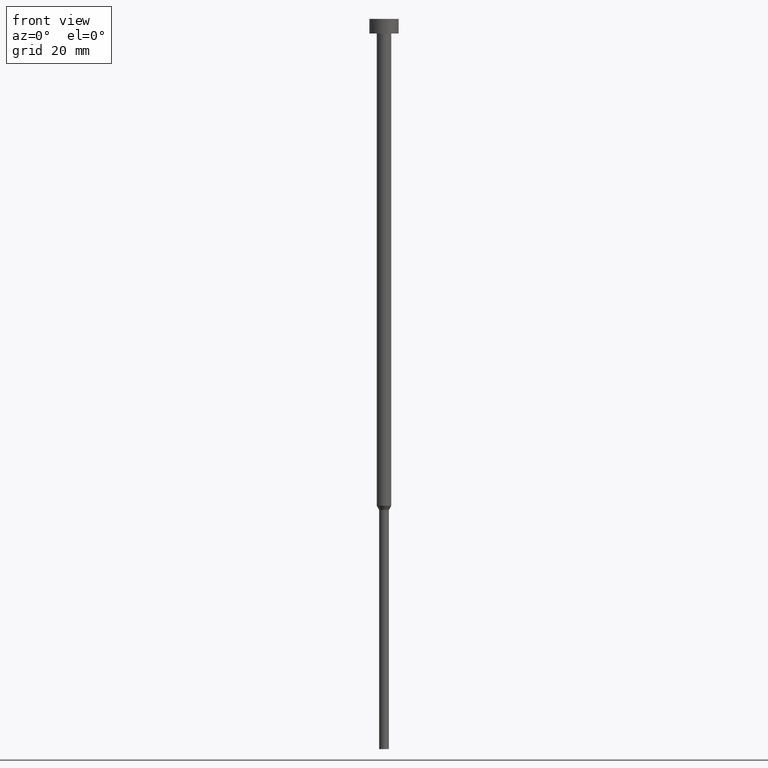
[diagram: clean part render]
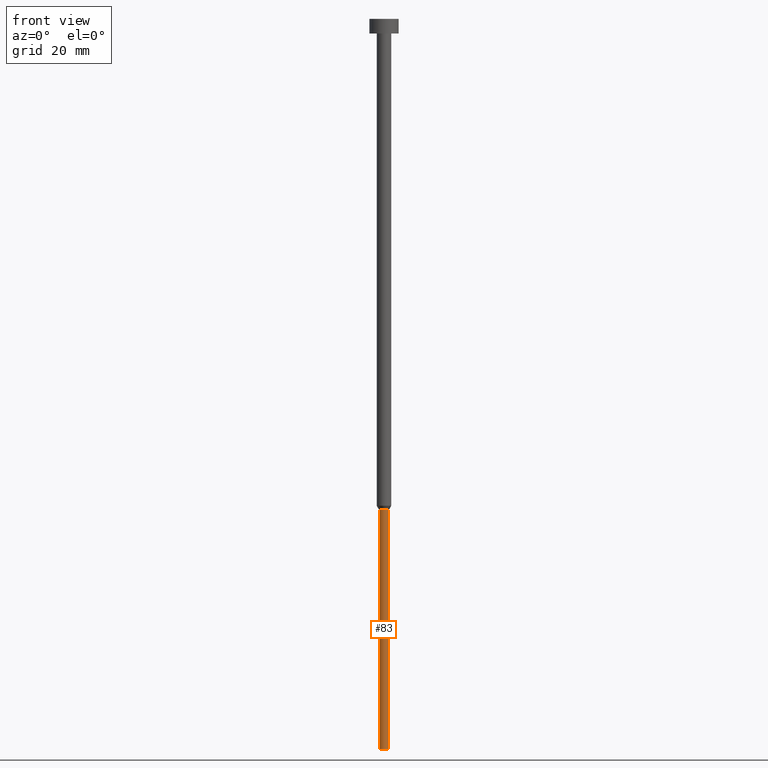
[diagram: same view with one face highlighted and labeled with its STEP entity id]
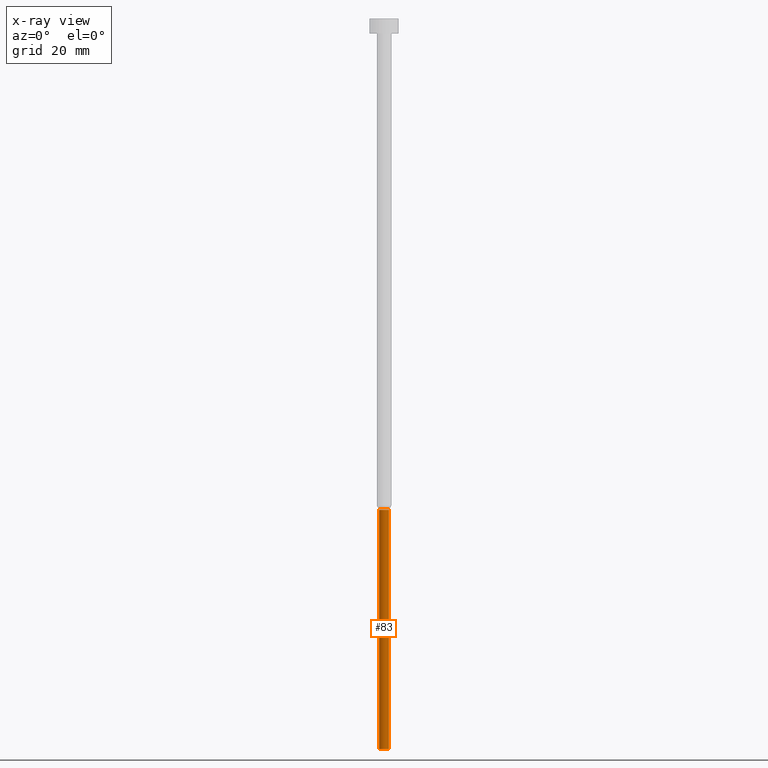
[diagram: x-ray of the same camera — body ghosted, the highlighted face saturated]
A machine part, front view. The second image highlights one B-rep face of the part: STEP entity #83.
The next image is the same camera in x-ray: the body ghosted, the highlighted face saturated — about 0% of this face is hidden behind the body in this view.
In plain terms, the highlighted cylindrical surface (edge-blend (fillet) strip) has radius 1 mm, axis along (-0, -0, 1).
Its self-contained STEP definition (entity closure, byte-faithful):
#1 = CARTESIAN_POINT ( 'NONE',  ( 1.000000000000000000, 0.000000000000000000, -150.0000000000000000 ) ) ;
#11 = VECTOR ( 'NONE', #70, 1000.000000000000000 ) ;
#14 = VERTEX_POINT ( 'NONE', #102 ) ;
#21 = CARTESIAN_POINT ( 'NONE',  ( 0.000000000000000000, 0.000000000000000000, -100.8660254037844481 ) ) ;
#41 = CYLINDRICAL_SURFACE ( 'NONE', #213, 1.000000000000000000 ) ;
#57 = AXIS2_PLACEMENT_3D ( 'NONE', #104, #258, #125 ) ;
#67 = DIRECTION ( 'NONE',  ( 1.000000000000000000, 0.000000000000000000, 0.000000000000000000 ) ) ;
#68 = CARTESIAN_POINT ( 'NONE',  ( -1.000000000000000000, 1.224646799147353207E-16, 0.000000000000000000 ) ) ;
#70 = DIRECTION ( 'NONE',  ( -0.000000000000000000, -0.000000000000000000, 1.000000000000000000 ) ) ;
#74 = VERTEX_POINT ( 'NONE', #298 ) ;
#83 = ADVANCED_FACE ( 'NONE', ( #162 ), #41, .T. ) ;
#102 = CARTESIAN_POINT ( 'NONE',  ( -1.000000000000000000, 1.224646799147353207E-16, -150.0000000000000000 ) ) ;
#103 = DIRECTION ( 'NONE',  ( 1.000000000000000000, 0.000000000000000000, 0.000000000000000000 ) ) ;
#104 = CARTESIAN_POINT ( 'NONE',  ( 0.000000000000000000, 0.000000000000000000, -150.0000000000000000 ) ) ;
#116 = CIRCLE ( 'NONE', #294, 1.000000000000000000 ) ;
#125 = DIRECTION ( 'NONE',  ( 1.000000000000000000, 0.000000000000000000, 0.000000000000000000 ) ) ;
#130 = DIRECTION ( 'NONE',  ( -0.000000000000000000, -0.000000000000000000, 1.000000000000000000 ) ) ;
#162 = FACE_OUTER_BOUND ( 'NONE', #286, .T. ) ;
#186 = CARTESIAN_POINT ( 'NONE',  ( 1.000000000000000000, 0.000000000000000000, -100.8660254037844481 ) ) ;
#192 = EDGE_CURVE ( 'NONE', #343, #215, #216, .T. ) ;
#200 = ORIENTED_EDGE ( 'NONE', *, *, #214, .F. ) ;
#210 = LINE ( 'NONE', #68, #304 ) ;
#213 = AXIS2_PLACEMENT_3D ( 'NONE', #329, #245, #103 ) ;
#214 = EDGE_CURVE ( 'NONE', #74, #215, #116, .T. ) ;
#215 = VERTEX_POINT ( 'NONE', #186 ) ;
#216 = LINE ( 'NONE', #322, #11 ) ;
#221 = EDGE_CURVE ( 'NONE', #14, #74, #210, .T. ) ;
#224 = ORIENTED_EDGE ( 'NONE', *, *, #221, .F. ) ;
#245 = DIRECTION ( 'NONE',  ( -0.000000000000000000, -0.000000000000000000, 1.000000000000000000 ) ) ;
#247 = ORIENTED_EDGE ( 'NONE', *, *, #248, .T. ) ;
#248 = EDGE_CURVE ( 'NONE', #14, #343, #256, .T. ) ;
#256 = CIRCLE ( 'NONE', #57, 1.000000000000000000 ) ;
#258 = DIRECTION ( 'NONE',  ( -0.000000000000000000, -0.000000000000000000, 1.000000000000000000 ) ) ;
#260 = DIRECTION ( 'NONE',  ( -0.000000000000000000, -0.000000000000000000, 1.000000000000000000 ) ) ;
#286 = EDGE_LOOP ( 'NONE', ( #224, #247, #331, #200 ) ) ;
#294 = AXIS2_PLACEMENT_3D ( 'NONE', #21, #130, #67 ) ;
#298 = CARTESIAN_POINT ( 'NONE',  ( -1.000000000000000000, 1.224646799147353207E-16, -100.8660254037844481 ) ) ;
#304 = VECTOR ( 'NONE', #260, 1000.000000000000000 ) ;
#322 = CARTESIAN_POINT ( 'NONE',  ( 1.000000000000000000, 0.000000000000000000, 0.000000000000000000 ) ) ;
#329 = CARTESIAN_POINT ( 'NONE',  ( 0.000000000000000000, 0.000000000000000000, 0.000000000000000000 ) ) ;
#331 = ORIENTED_EDGE ( 'NONE', *, *, #192, .T. ) ;
#343 = VERTEX_POINT ( 'NONE', #1 ) ;